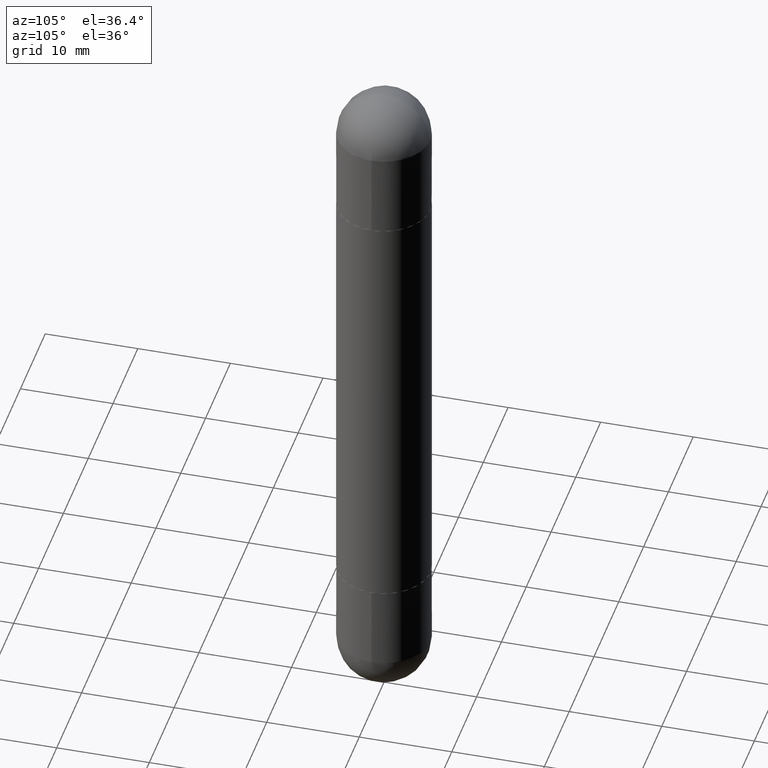
[diagram: clean part render]
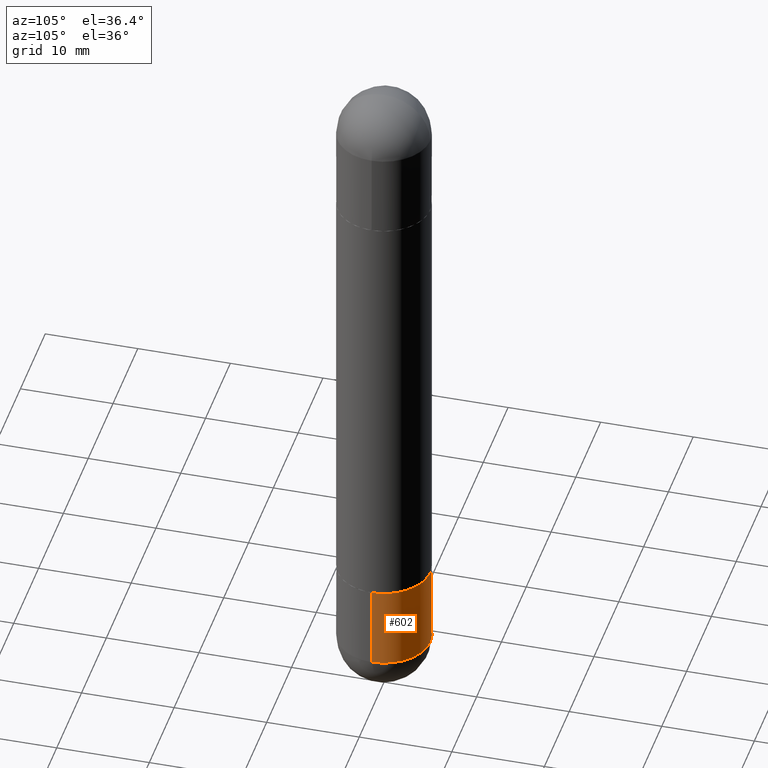
[diagram: same view with one face highlighted and labeled with its STEP entity id]
A machine part, auxiliary view. The second image highlights one B-rep face of the part: STEP entity #602.
In plain terms, the highlighted cylindrical surface (partial cylindrical patch) has radius 5 mm, axis along (-0, 0, 1).
Its self-contained STEP definition (entity closure, byte-faithful):
#41 = CARTESIAN_POINT ( 'NONE',  ( 0.000000000000000000, 0.000000000000000000, 0.000000000000000000 ) ) ;
#61 = VECTOR ( 'NONE', #699, 39.37007874015748143 ) ;
#89 = CARTESIAN_POINT ( 'NONE',  ( 6.739589756405927064E-29, -9.622347995784766935E-15, -2.755949999999999900 ) ) ;
#91 = DIRECTION ( 'NONE',  ( 1.000000000000000000, -6.982962677686262766E-15, 0.000000000000000000 ) ) ;
#128 = CARTESIAN_POINT ( 'NONE',  ( -0.1968500000000000527, -7.605041414231473522E-15, -2.755949999999999900 ) ) ;
#157 = ORIENTED_EDGE ( 'NONE', *, *, #687, .F. ) ;
#160 = VECTOR ( 'NONE', #337, 39.37007874015748143 ) ;
#172 = VERTEX_POINT ( 'NONE', #652 ) ;
#204 = DIRECTION ( 'NONE',  ( -2.445468806185136597E-29, 3.491481338843145583E-15, 1.000000000000000000 ) ) ;
#208 = DIRECTION ( 'NONE',  ( -2.445468806185136597E-29, 3.491481338843145583E-15, 1.000000000000000000 ) ) ;
#249 = CARTESIAN_POINT ( 'NONE',  ( 0.1968500000000000527, -1.374596203102542003E-15, 9.598753983154302260E-30 ) ) ;
#274 = ORIENTED_EDGE ( 'NONE', *, *, #747, .T. ) ;
#301 = AXIS2_PLACEMENT_3D ( 'NONE', #615, #752, #303 ) ;
#303 = DIRECTION ( 'NONE',  ( 1.000000000000000000, -6.982962677686266711E-15, 0.000000000000000000 ) ) ;
#317 = CIRCLE ( 'NONE', #301, 0.1968500000000000527 ) ;
#322 = CARTESIAN_POINT ( 'NONE',  ( 5.873037884934223228E-29, -8.385141583365697263E-15, -2.401599999999999735 ) ) ;
#337 = DIRECTION ( 'NONE',  ( -2.445468806185136877E-29, 3.491481338843145188E-15, 1.000000000000000000 ) ) ;
#353 = VERTEX_POINT ( 'NONE', #128 ) ;
#357 = CARTESIAN_POINT ( 'NONE',  ( 0.1968500000000000250, -9.759737786468237294E-15, -2.401599999999999735 ) ) ;
#366 = AXIS2_PLACEMENT_3D ( 'NONE', #89, #208, #712 ) ;
#377 = LINE ( 'NONE', #249, #61 ) ;
#401 = VERTEX_POINT ( 'NONE', #716 ) ;
#406 = AXIS2_PLACEMENT_3D ( 'NONE', #322, #204, #91 ) ;
#409 = CYLINDRICAL_SURFACE ( 'NONE', #444, 0.1968500000000000527 ) ;
#410 = EDGE_CURVE ( 'NONE', #630, #172, #811, .T. ) ;
#444 = AXIS2_PLACEMENT_3D ( 'NONE', #41, #727, #476 ) ;
#466 = FACE_OUTER_BOUND ( 'NONE', #533, .T. ) ;
#471 = EDGE_CURVE ( 'NONE', #514, #401, #714, .T. ) ;
#476 = DIRECTION ( 'NONE',  ( 1.000000000000000000, -6.982962677686266711E-15, 4.876176775795935793E-29 ) ) ;
#481 = EDGE_CURVE ( 'NONE', #353, #172, #645, .T. ) ;
#514 = VERTEX_POINT ( 'NONE', #588 ) ;
#533 = EDGE_LOOP ( 'NONE', ( #274, #737, #534, #157, #574 ) ) ;
#534 = ORIENTED_EDGE ( 'NONE', *, *, #410, .F. ) ;
#574 = ORIENTED_EDGE ( 'NONE', *, *, #471, .T. ) ;
#588 = CARTESIAN_POINT ( 'NONE',  ( 0.1968500000000000527, -1.037834099267777371E-14, -2.755949999999999900 ) ) ;
#602 = ADVANCED_FACE ( 'NONE', ( #466 ), #409, .T. ) ;
#615 = CARTESIAN_POINT ( 'NONE',  ( 6.739589756405927064E-29, -9.622347995784766935E-15, -2.755949999999999900 ) ) ;
#630 = VERTEX_POINT ( 'NONE', #357 ) ;
#645 = LINE ( 'NONE', #718, #160 ) ;
#652 = CARTESIAN_POINT ( 'NONE',  ( -0.1968500000000000250, -7.605041414231473522E-15, -2.401599999999999735 ) ) ;
#687 = EDGE_CURVE ( 'NONE', #514, #630, #377, .T. ) ;
#699 = DIRECTION ( 'NONE',  ( -2.445468806185136877E-29, 3.491481338843145188E-15, 1.000000000000000000 ) ) ;
#712 = DIRECTION ( 'NONE',  ( 1.000000000000000000, -6.982962677686266711E-15, 0.000000000000000000 ) ) ;
#714 = CIRCLE ( 'NONE', #366, 0.1968500000000000527 ) ;
#716 = CARTESIAN_POINT ( 'NONE',  ( 1.374596203102607873E-15, 0.1968499999999902550, -2.755950000000000344 ) ) ;
#718 = CARTESIAN_POINT ( 'NONE',  ( -0.1968500000000000527, 1.398703375343757590E-15, -9.682923725166785079E-30 ) ) ;
#727 = DIRECTION ( 'NONE',  ( -2.445468806185136597E-29, 3.491481338843145583E-15, 1.000000000000000000 ) ) ;
#737 = ORIENTED_EDGE ( 'NONE', *, *, #481, .T. ) ;
#747 = EDGE_CURVE ( 'NONE', #401, #353, #317, .T. ) ;
#752 = DIRECTION ( 'NONE',  ( -2.445468806185136597E-29, 3.491481338843145583E-15, 1.000000000000000000 ) ) ;
#811 = CIRCLE ( 'NONE', #406, 0.1968500000000000250 ) ;